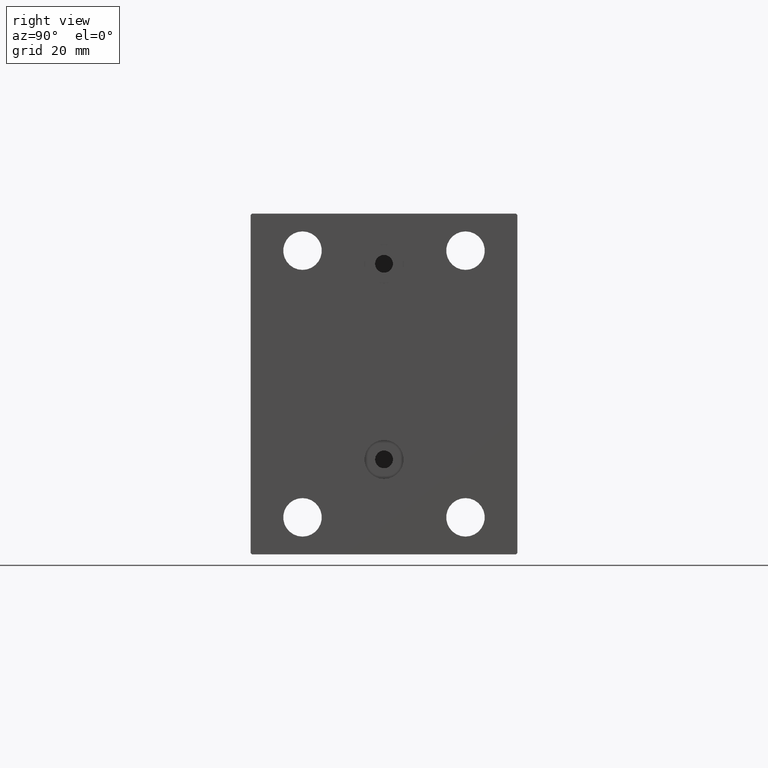
[diagram: clean part render]
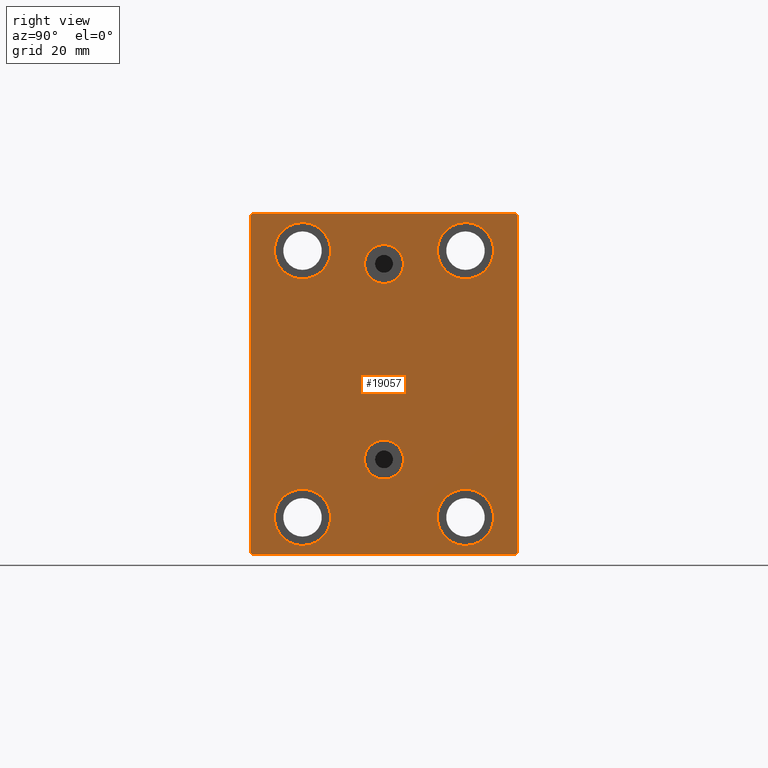
[diagram: same view with one face highlighted and labeled with its STEP entity id]
A machine part, right view. The second image highlights one B-rep face of the part: STEP entity #19057.
In plain terms, the highlighted planar face has unit normal (1, 0, 0).
Its self-contained STEP definition (entity closure, byte-faithful):
#15 = EDGE_LOOP ( 'NONE', ( #4514, #39085, #36660, #20928, #2039, #34401, #6039, #43496 ) ) ;
#103 = CARTESIAN_POINT ( 'NONE',  ( 103.0000000000000000, 51.00000000000000000, 51.00000000000000000 ) ) ;
#136 = ORIENTED_EDGE ( 'NONE', *, *, #44343, .T. ) ;
#218 = LINE ( 'NONE', #43827, #1380 ) ;
#269 = ORIENTED_EDGE ( 'NONE', *, *, #1657, .F. ) ;
#720 = EDGE_CURVE ( 'NONE', #39268, #39882, #1895, .T. ) ;
#923 = EDGE_CURVE ( 'NONE', #25448, #39413, #44014, .T. ) ;
#1254 = VERTEX_POINT ( 'NONE', #11642 ) ;
#1380 = VECTOR ( 'NONE', #15033, 1000.000000000000000 ) ;
#1657 = EDGE_CURVE ( 'NONE', #31990, #15435, #35043, .T. ) ;
#1776 = CARTESIAN_POINT ( 'NONE',  ( 103.0000000000000000, 0.000000000000000000, 0.000000000000000000 ) ) ;
#1895 = CIRCLE ( 'NONE', #37289, 9.500000000000001776 ) ;
#2039 = ORIENTED_EDGE ( 'NONE', *, *, #923, .T. ) ;
#2087 = EDGE_LOOP ( 'NONE', ( #28260, #269 ) ) ;
#2117 = EDGE_CURVE ( 'NONE', #15435, #31990, #32779, .T. ) ;
#2342 = ORIENTED_EDGE ( 'NONE', *, *, #20676, .T. ) ;
#2408 = DIRECTION ( 'NONE',  ( 0.000000000000000000, 0.000000000000000000, 1.000000000000000000 ) ) ;
#2779 = CARTESIAN_POINT ( 'NONE',  ( 103.0000000000000000, 27.50000000000001066, 54.50000000000000711 ) ) ;
#2997 = VERTEX_POINT ( 'NONE', #38211 ) ;
#3024 = VERTEX_POINT ( 'NONE', #12060 ) ;
#3354 = EDGE_CURVE ( 'NONE', #14162, #45654, #43282, .T. ) ;
#4059 = VERTEX_POINT ( 'NONE', #35338 ) ;
#4072 = DIRECTION ( 'NONE',  ( 0.000000000000000000, 0.000000000000000000, 1.000000000000000000 ) ) ;
#4514 = ORIENTED_EDGE ( 'NONE', *, *, #13114, .T. ) ;
#4593 = CARTESIAN_POINT ( 'NONE',  ( 103.0000000000000000, 3.122849337825749828E-15, -25.49999999999999645 ) ) ;
#4602 = CARTESIAN_POINT ( 'NONE',  ( 103.0000000000000000, -27.50000000000000000, -35.49999999999998579 ) ) ;
#4913 = CIRCLE ( 'NONE', #9436, 9.500000000000001776 ) ;
#5079 = FACE_BOUND ( 'NONE', #27975, .T. ) ;
#5252 = DIRECTION ( 'NONE',  ( -1.000000000000000000, -0.000000000000000000, -0.000000000000000000 ) ) ;
#5364 = EDGE_CURVE ( 'NONE', #39882, #39268, #38830, .T. ) ;
#5435 = DIRECTION ( 'NONE',  ( 0.000000000000000000, 0.000000000000000000, -1.000000000000000000 ) ) ;
#5585 = AXIS2_PLACEMENT_3D ( 'NONE', #31708, #36406, #10969 ) ;
#5714 = AXIS2_PLACEMENT_3D ( 'NONE', #39369, #6596, #24495 ) ;
#6039 = ORIENTED_EDGE ( 'NONE', *, *, #24143, .T. ) ;
#6596 = DIRECTION ( 'NONE',  ( -1.000000000000000000, -0.000000000000000000, -0.000000000000000000 ) ) ;
#6782 = EDGE_CURVE ( 'NONE', #14923, #1254, #9493, .T. ) ;
#7454 = AXIS2_PLACEMENT_3D ( 'NONE', #1776, #16143, #15216 ) ;
#8762 = ORIENTED_EDGE ( 'NONE', *, *, #18334, .T. ) ;
#9029 = CARTESIAN_POINT ( 'NONE',  ( 103.0000000000000000, 27.50000000000001066, 45.00000000000000711 ) ) ;
#9088 = FACE_BOUND ( 'NONE', #34376, .T. ) ;
#9436 = AXIS2_PLACEMENT_3D ( 'NONE', #37551, #5252, #12565 ) ;
#9493 = CIRCLE ( 'NONE', #5714, 9.500000000000001776 ) ;
#9556 = CARTESIAN_POINT ( 'NONE',  ( 103.0000000000000000, -45.00000000000000000, 56.99999999999996447 ) ) ;
#9602 = EDGE_LOOP ( 'NONE', ( #11608, #10996 ) ) ;
#9668 = CARTESIAN_POINT ( 'NONE',  ( 103.0000000000000000, 50.99999999999940314, -51.00000000000082423 ) ) ;
#10166 = DIRECTION ( 'NONE',  ( -0.000000000000000000, 0.7071067811865279218, -0.7071067811865671127 ) ) ;
#10577 = VERTEX_POINT ( 'NONE', #28373 ) ;
#10969 = DIRECTION ( 'NONE',  ( 0.000000000000000000, 0.000000000000000000, -1.000000000000000000 ) ) ;
#10996 = ORIENTED_EDGE ( 'NONE', *, *, #31650, .F. ) ;
#11093 = LINE ( 'NONE', #42488, #28795 ) ;
#11160 = CARTESIAN_POINT ( 'NONE',  ( 103.0000000000000000, -45.00000000000000000, -57.00000000000003553 ) ) ;
#11271 = AXIS2_PLACEMENT_3D ( 'NONE', #4593, #18973, #22057 ) ;
#11295 = CARTESIAN_POINT ( 'NONE',  ( 103.0000000000000000, 45.00000000000001421, -57.50000000000000711 ) ) ;
#11402 = LINE ( 'NONE', #103, #43666 ) ;
#11608 = ORIENTED_EDGE ( 'NONE', *, *, #25809, .F. ) ;
#11642 = CARTESIAN_POINT ( 'NONE',  ( 103.0000000000000000, 27.50000000000001066, 35.50000000000000711 ) ) ;
#11926 = CARTESIAN_POINT ( 'NONE',  ( 103.0000000000000000, -45.00000000000000000, -57.50000000000000711 ) ) ;
#12060 = CARTESIAN_POINT ( 'NONE',  ( 103.0000000000000000, -27.49999999999998934, 35.50000000000000711 ) ) ;
#12565 = DIRECTION ( 'NONE',  ( 0.000000000000000000, 0.000000000000000000, 1.000000000000000000 ) ) ;
#12619 = PLANE ( 'NONE',  #7454 ) ;
#13114 = EDGE_CURVE ( 'NONE', #15963, #42554, #218, .T. ) ;
#13947 = VECTOR ( 'NONE', #36182, 1000.000000000000000 ) ;
#14162 = VERTEX_POINT ( 'NONE', #4602 ) ;
#14711 = AXIS2_PLACEMENT_3D ( 'NONE', #37734, #38200, #5435 ) ;
#14923 = VERTEX_POINT ( 'NONE', #2779 ) ;
#15033 = DIRECTION ( 'NONE',  ( 0.000000000000000000, -1.000000000000000000, -1.541976423090495387E-16 ) ) ;
#15216 = DIRECTION ( 'NONE',  ( 0.000000000000000000, 0.000000000000000000, -1.000000000000000000 ) ) ;
#15435 = VERTEX_POINT ( 'NONE', #26933 ) ;
#15698 = CIRCLE ( 'NONE', #20987, 9.500000000000001776 ) ;
#15963 = VERTEX_POINT ( 'NONE', #23467 ) ;
#16143 = DIRECTION ( 'NONE',  ( 1.000000000000000000, 0.000000000000000000, 0.000000000000000000 ) ) ;
#16146 = VECTOR ( 'NONE', #24030, 1000.000000000000114 ) ;
#17122 = CARTESIAN_POINT ( 'NONE',  ( 103.0000000000000000, 44.50000000000000000, -57.50000000000000711 ) ) ;
#17181 = ORIENTED_EDGE ( 'NONE', *, *, #6782, .T. ) ;
#17974 = CARTESIAN_POINT ( 'NONE',  ( 103.0000000000000000, 27.49999999999998934, -44.99999999999998579 ) ) ;
#18006 = DIRECTION ( 'NONE',  ( -0.000000000000000000, -0.7071067811865474617, 0.7071067811865474617 ) ) ;
#18334 = EDGE_CURVE ( 'NONE', #24322, #3024, #15698, .T. ) ;
#18367 = DIRECTION ( 'NONE',  ( 0.000000000000000000, 0.000000000000000000, 1.000000000000000000 ) ) ;
#18440 = CIRCLE ( 'NONE', #27488, 9.500000000000001776 ) ;
#18973 = DIRECTION ( 'NONE',  ( 1.000000000000000000, 0.000000000000000000, -0.000000000000000000 ) ) ;
#19057 = ADVANCED_FACE ( 'NONE', ( #37378, #33361, #5079, #19673, #34060, #9088, #33134 ), #12619, .T. ) ;
#19169 = CARTESIAN_POINT ( 'NONE',  ( 103.0000000000000000, -27.49999999999998934, 45.00000000000000711 ) ) ;
#19673 = FACE_BOUND ( 'NONE', #32653, .T. ) ;
#20319 = DIRECTION ( 'NONE',  ( -1.000000000000000000, -0.000000000000000000, -0.000000000000000000 ) ) ;
#20676 = EDGE_CURVE ( 'NONE', #3024, #24322, #30842, .T. ) ;
#20928 = ORIENTED_EDGE ( 'NONE', *, *, #37977, .T. ) ;
#20987 = AXIS2_PLACEMENT_3D ( 'NONE', #19169, #28877, #43290 ) ;
#21190 = ORIENTED_EDGE ( 'NONE', *, *, #44305, .T. ) ;
#21209 = DIRECTION ( 'NONE',  ( -1.000000000000000000, -0.000000000000000000, -0.000000000000000000 ) ) ;
#21513 = DIRECTION ( 'NONE',  ( 0.000000000000000000, 0.000000000000000000, 1.000000000000000000 ) ) ;
#21843 = VERTEX_POINT ( 'NONE', #11160 ) ;
#22004 = ORIENTED_EDGE ( 'NONE', *, *, #5364, .T. ) ;
#22057 = DIRECTION ( 'NONE',  ( 0.000000000000000000, 0.000000000000000000, 1.000000000000000000 ) ) ;
#23467 = CARTESIAN_POINT ( 'NONE',  ( 103.0000000000000000, 44.50000000000000000, 57.50000000000000711 ) ) ;
#24030 = DIRECTION ( 'NONE',  ( -0.000000000000000000, 0.7071067811865573427, 0.7071067811865376918 ) ) ;
#24084 = DIRECTION ( 'NONE',  ( 0.000000000000000000, 0.000000000000000000, -1.000000000000000000 ) ) ;
#24143 = EDGE_CURVE ( 'NONE', #10577, #2997, #29198, .T. ) ;
#24298 = ORIENTED_EDGE ( 'NONE', *, *, #3354, .T. ) ;
#24322 = VERTEX_POINT ( 'NONE', #30730 ) ;
#24495 = DIRECTION ( 'NONE',  ( 0.000000000000000000, 0.000000000000000000, 1.000000000000000000 ) ) ;
#25308 = CARTESIAN_POINT ( 'NONE',  ( 103.0000000000000000, 3.122849337825749828E-15, -25.49999999999999645 ) ) ;
#25448 = VERTEX_POINT ( 'NONE', #46516 ) ;
#25668 = DIRECTION ( 'NONE',  ( 0.000000000000000000, -1.206764157201257045E-16, 1.000000000000000000 ) ) ;
#25809 = EDGE_CURVE ( 'NONE', #28537, #4059, #39120, .T. ) ;
#26063 = EDGE_CURVE ( 'NONE', #2997, #15963, #11402, .T. ) ;
#26207 = EDGE_CURVE ( 'NONE', #32815, #21843, #31158, .T. ) ;
#26933 = CARTESIAN_POINT ( 'NONE',  ( 103.0000000000000000, -5.306417150674643778E-15, 33.92000000000000881 ) ) ;
#27488 = AXIS2_PLACEMENT_3D ( 'NONE', #9029, #20319, #2408 ) ;
#27975 = EDGE_LOOP ( 'NONE', ( #34153, #22004 ) ) ;
#28260 = ORIENTED_EDGE ( 'NONE', *, *, #2117, .F. ) ;
#28373 = CARTESIAN_POINT ( 'NONE',  ( 103.0000000000000000, 45.00000000000001421, -57.00000000000003553 ) ) ;
#28537 = VERTEX_POINT ( 'NONE', #32030 ) ;
#28795 = VECTOR ( 'NONE', #10166, 1000.000000000000000 ) ;
#28877 = DIRECTION ( 'NONE',  ( -1.000000000000000000, -0.000000000000000000, -0.000000000000000000 ) ) ;
#29198 = LINE ( 'NONE', #11295, #36070 ) ;
#29371 = DIRECTION ( 'NONE',  ( 0.000000000000000000, 1.000000000000000000, 0.000000000000000000 ) ) ;
#30446 = AXIS2_PLACEMENT_3D ( 'NONE', #31550, #45972, #35329 ) ;
#30730 = CARTESIAN_POINT ( 'NONE',  ( 103.0000000000000000, -27.49999999999998934, 54.50000000000000711 ) ) ;
#30816 = DIRECTION ( 'NONE',  ( 0.000000000000000000, 0.000000000000000000, 1.000000000000000000 ) ) ;
#30842 = CIRCLE ( 'NONE', #34618, 9.500000000000001776 ) ;
#31158 = LINE ( 'NONE', #38241, #33125 ) ;
#31550 = CARTESIAN_POINT ( 'NONE',  ( 103.0000000000000000, -27.50000000000000000, -44.99999999999998579 ) ) ;
#31650 = EDGE_CURVE ( 'NONE', #4059, #28537, #40792, .T. ) ;
#31708 = CARTESIAN_POINT ( 'NONE',  ( 103.0000000000000000, -5.306417150674643778E-15, 40.50000000000000711 ) ) ;
#31990 = VERTEX_POINT ( 'NONE', #37484 ) ;
#32030 = CARTESIAN_POINT ( 'NONE',  ( 103.0000000000000000, 3.122849337825749828E-15, -32.07999999999999829 ) ) ;
#32653 = EDGE_LOOP ( 'NONE', ( #2342, #8762 ) ) ;
#32779 = CIRCLE ( 'NONE', #5585, 6.580000000000002736 ) ;
#32815 = VERTEX_POINT ( 'NONE', #9556 ) ;
#33061 = DIRECTION ( 'NONE',  ( 1.000000000000000000, 0.000000000000000000, -0.000000000000000000 ) ) ;
#33125 = VECTOR ( 'NONE', #24084, 1000.000000000000000 ) ;
#33134 = FACE_OUTER_BOUND ( 'NONE', #15, .T. ) ;
#33361 = FACE_BOUND ( 'NONE', #9602, .T. ) ;
#33994 = AXIS2_PLACEMENT_3D ( 'NONE', #25308, #33061, #4072 ) ;
#34060 = FACE_BOUND ( 'NONE', #38647, .T. ) ;
#34153 = ORIENTED_EDGE ( 'NONE', *, *, #720, .T. ) ;
#34376 = EDGE_LOOP ( 'NONE', ( #21190, #24298 ) ) ;
#34401 = ORIENTED_EDGE ( 'NONE', *, *, #43393, .T. ) ;
#34618 = AXIS2_PLACEMENT_3D ( 'NONE', #43402, #21209, #18367 ) ;
#35043 = CIRCLE ( 'NONE', #14711, 6.580000000000002736 ) ;
#35329 = DIRECTION ( 'NONE',  ( 0.000000000000000000, 0.000000000000000000, 1.000000000000000000 ) ) ;
#35338 = CARTESIAN_POINT ( 'NONE',  ( 103.0000000000000000, 3.928666931664708475E-15, -18.91999999999999105 ) ) ;
#35712 = CARTESIAN_POINT ( 'NONE',  ( 103.0000000000000000, -51.00000000000122924, 50.99999999999839417 ) ) ;
#36070 = VECTOR ( 'NONE', #25668, 1000.000000000000000 ) ;
#36095 = CARTESIAN_POINT ( 'NONE',  ( 103.0000000000000000, 27.49999999999998934, -54.49999999999998579 ) ) ;
#36182 = DIRECTION ( 'NONE',  ( 0.000000000000000000, -0.7071067811865279218, -0.7071067811865672237 ) ) ;
#36406 = DIRECTION ( 'NONE',  ( 1.000000000000000000, 0.000000000000000000, 0.000000000000000000 ) ) ;
#36660 = ORIENTED_EDGE ( 'NONE', *, *, #26207, .T. ) ;
#37289 = AXIS2_PLACEMENT_3D ( 'NONE', #41463, #45230, #30816 ) ;
#37378 = FACE_BOUND ( 'NONE', #2087, .T. ) ;
#37484 = CARTESIAN_POINT ( 'NONE',  ( 103.0000000000000000, -4.500599556835684736E-15, 47.08000000000001251 ) ) ;
#37551 = CARTESIAN_POINT ( 'NONE',  ( 103.0000000000000000, -27.50000000000000000, -44.99999999999998579 ) ) ;
#37734 = CARTESIAN_POINT ( 'NONE',  ( 103.0000000000000000, -5.306417150674643778E-15, 40.50000000000000711 ) ) ;
#37977 = EDGE_CURVE ( 'NONE', #21843, #25448, #11093, .T. ) ;
#38200 = DIRECTION ( 'NONE',  ( 1.000000000000000000, 0.000000000000000000, 0.000000000000000000 ) ) ;
#38211 = CARTESIAN_POINT ( 'NONE',  ( 103.0000000000000000, 45.00000000000000000, 56.99999999999997868 ) ) ;
#38241 = CARTESIAN_POINT ( 'NONE',  ( 103.0000000000000000, -45.00000000000000000, 57.49999999999999289 ) ) ;
#38647 = EDGE_LOOP ( 'NONE', ( #136, #17181 ) ) ;
#38830 = CIRCLE ( 'NONE', #43353, 9.500000000000001776 ) ;
#39085 = ORIENTED_EDGE ( 'NONE', *, *, #45052, .T. ) ;
#39120 = CIRCLE ( 'NONE', #11271, 6.580000000000002736 ) ;
#39268 = VERTEX_POINT ( 'NONE', #36095 ) ;
#39369 = CARTESIAN_POINT ( 'NONE',  ( 103.0000000000000000, 27.50000000000001066, 45.00000000000000711 ) ) ;
#39413 = VERTEX_POINT ( 'NONE', #17122 ) ;
#39505 = LINE ( 'NONE', #35712, #13947 ) ;
#39580 = VECTOR ( 'NONE', #29371, 1000.000000000000000 ) ;
#39882 = VERTEX_POINT ( 'NONE', #46049 ) ;
#40792 = CIRCLE ( 'NONE', #33994, 6.580000000000002736 ) ;
#41463 = CARTESIAN_POINT ( 'NONE',  ( 103.0000000000000000, 27.49999999999998934, -44.99999999999998579 ) ) ;
#41986 = LINE ( 'NONE', #9668, #16146 ) ;
#42488 = CARTESIAN_POINT ( 'NONE',  ( 103.0000000000000000, -51.00000000000125766, -50.99999999999843681 ) ) ;
#42554 = VERTEX_POINT ( 'NONE', #42646 ) ;
#42646 = CARTESIAN_POINT ( 'NONE',  ( 103.0000000000000000, -44.49999999999997158, 57.49999999999999289 ) ) ;
#42783 = DIRECTION ( 'NONE',  ( -1.000000000000000000, -0.000000000000000000, -0.000000000000000000 ) ) ;
#43282 = CIRCLE ( 'NONE', #30446, 9.500000000000001776 ) ;
#43290 = DIRECTION ( 'NONE',  ( 0.000000000000000000, 0.000000000000000000, 1.000000000000000000 ) ) ;
#43353 = AXIS2_PLACEMENT_3D ( 'NONE', #17974, #42783, #21513 ) ;
#43393 = EDGE_CURVE ( 'NONE', #39413, #10577, #41986, .T. ) ;
#43402 = CARTESIAN_POINT ( 'NONE',  ( 103.0000000000000000, -27.49999999999998934, 45.00000000000000711 ) ) ;
#43496 = ORIENTED_EDGE ( 'NONE', *, *, #26063, .T. ) ;
#43666 = VECTOR ( 'NONE', #18006, 1000.000000000000114 ) ;
#43827 = CARTESIAN_POINT ( 'NONE',  ( 103.0000000000000000, 45.00000000000000000, 57.50000000000000711 ) ) ;
#44014 = LINE ( 'NONE', #11926, #39580 ) ;
#44305 = EDGE_CURVE ( 'NONE', #45654, #14162, #4913, .T. ) ;
#44343 = EDGE_CURVE ( 'NONE', #1254, #14923, #18440, .T. ) ;
#45052 = EDGE_CURVE ( 'NONE', #42554, #32815, #39505, .T. ) ;
#45230 = DIRECTION ( 'NONE',  ( -1.000000000000000000, -0.000000000000000000, -0.000000000000000000 ) ) ;
#45654 = VERTEX_POINT ( 'NONE', #46016 ) ;
#45972 = DIRECTION ( 'NONE',  ( -1.000000000000000000, -0.000000000000000000, -0.000000000000000000 ) ) ;
#46016 = CARTESIAN_POINT ( 'NONE',  ( 103.0000000000000000, -27.50000000000000000, -54.49999999999998579 ) ) ;
#46049 = CARTESIAN_POINT ( 'NONE',  ( 103.0000000000000000, 27.49999999999998934, -35.49999999999998579 ) ) ;
#46516 = CARTESIAN_POINT ( 'NONE',  ( 103.0000000000000000, -44.50000000000005684, -57.50000000000000711 ) ) ;